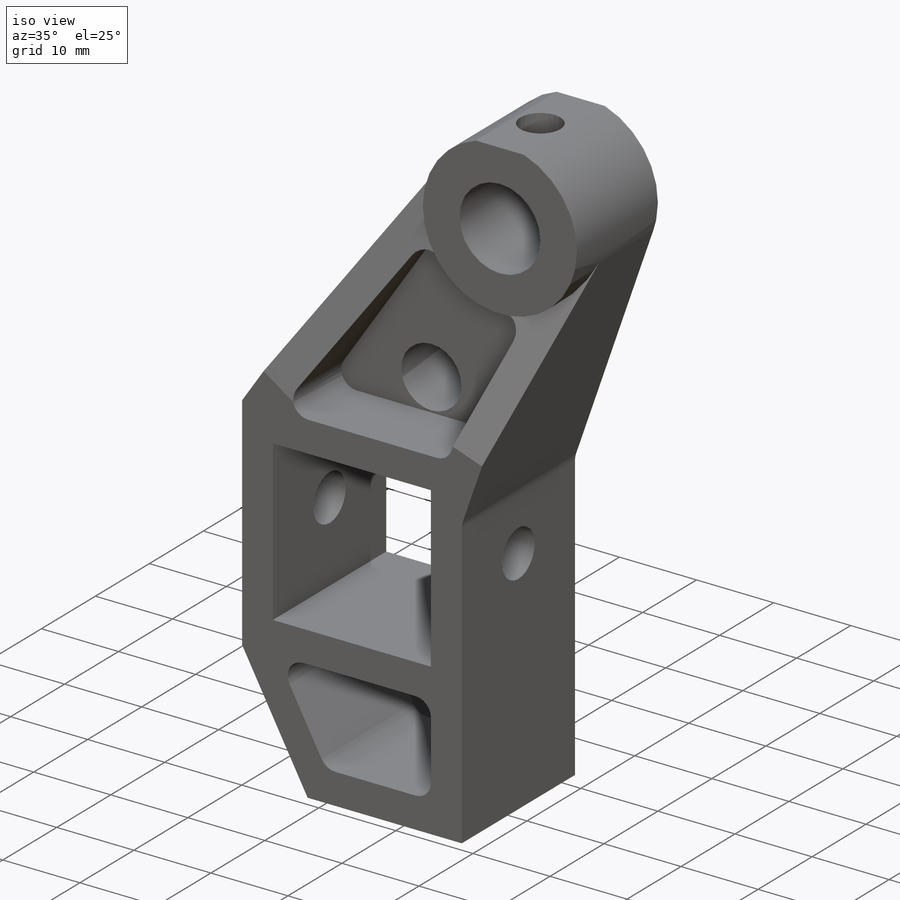
[diagram: iso view]
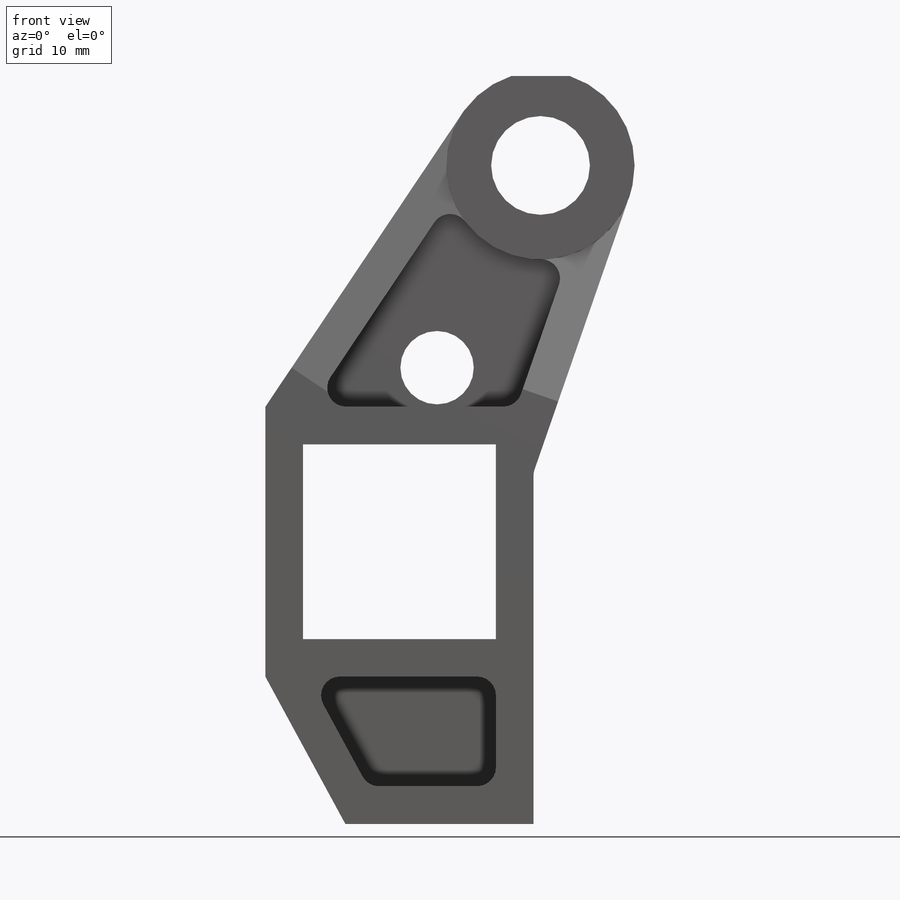
[diagram: front view]
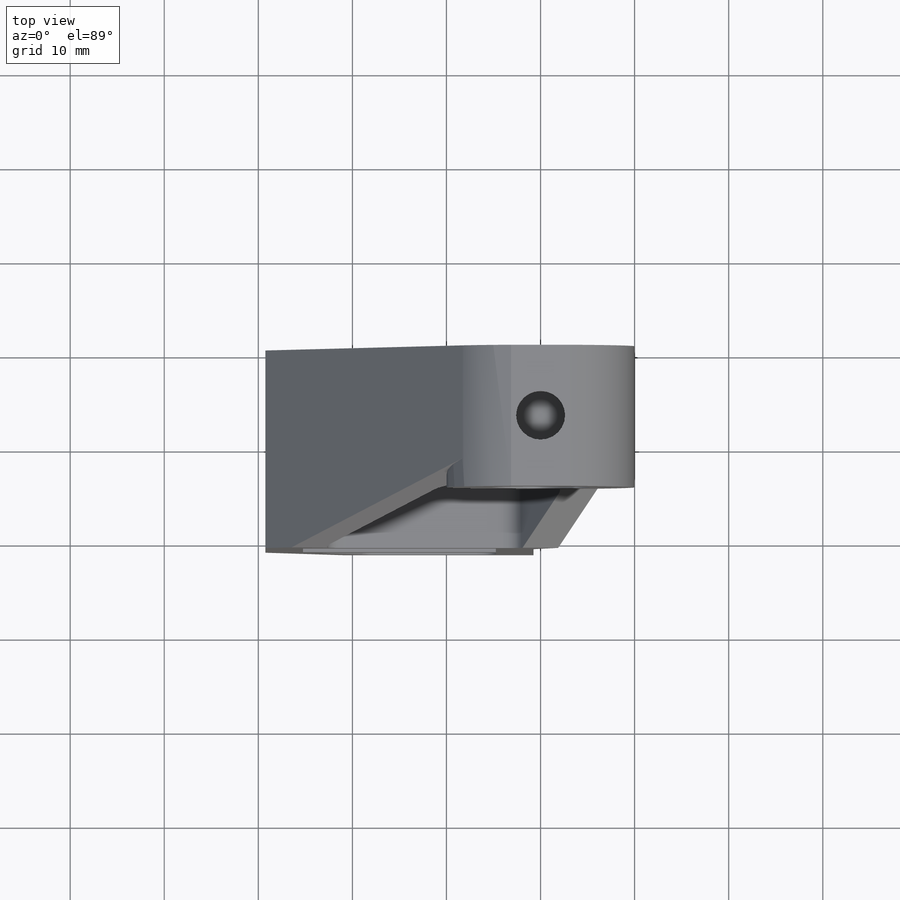
[diagram: top view]
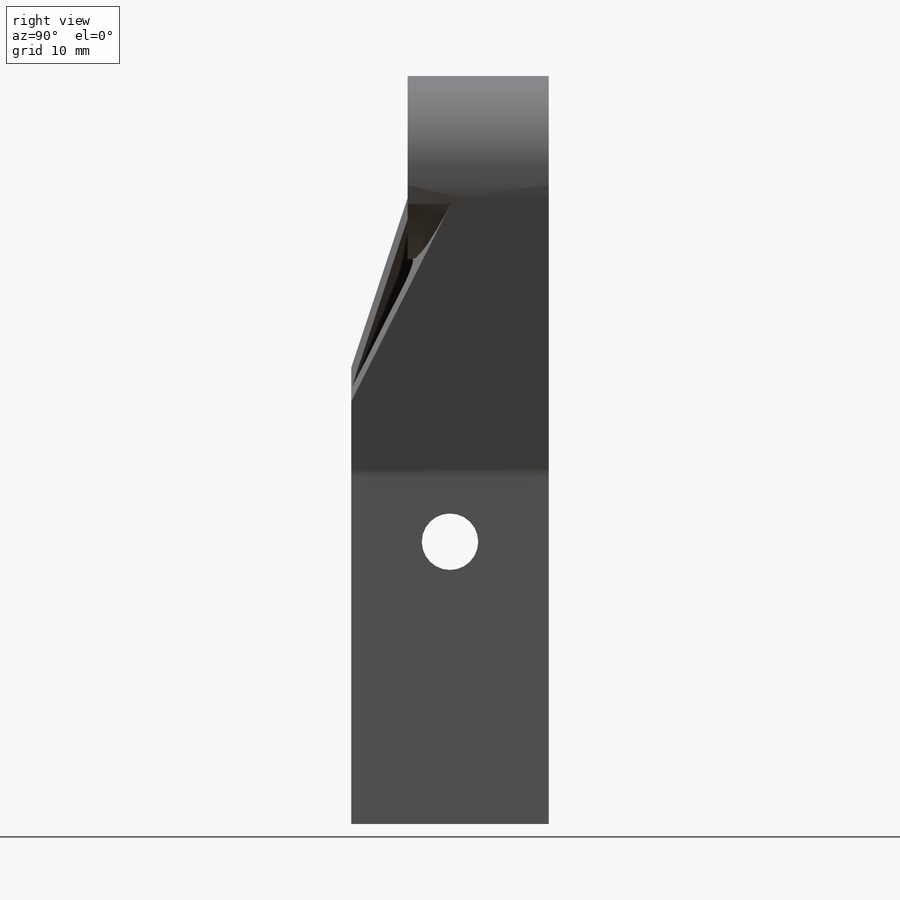
[diagram: right view]
SOLIDWORKS PART (.sldprt)
format: sldprt  version: not decoded by parser v0  size: 327,168 bytes
history: native  units: mm
features: sketch x8, extrude x6, cut_extrude x2, material x1, fillet x1 (+11 scaffold rows collapsed)
feature tree (29):
  scaffold x11  (default folders/planes/origin — collapsed)
  material  "Material <not specified>"
  sketch  "Sketch1"  dims[c1.D3=10.5mm c1.D4=10.0mm c1.D8=20.0mm c1.D18=7.8mm c1.D1=40.0mm c1.D2=15.0mm c1.D5=20.7mm c1.D6=20.5mm c1.D7=10.25mm c1.D9=4.0mm c1.D10=20.0mm c1.D11=30.0mm c1.D12=2.0mm c1.D13=9.5mm c2.D9=4.0mm c2.D14=4.0mm c2.D15=4.0mm c2.D7=4.0mm c2.D12=3.0mm c2.D16=18.5mm c2.D17=4.0mm]
  extrude  "Boss-Extrude1"  Depth=4mm
  sketch  "Sketch2"
  extrude  "Boss-Extrude2"  Depth=11mm
  sketch  "Sketch3"  dims[D4=2.0mm D5=2.0mm D1=4.0mm D2=4.0mm D3=4.0mm]
  extrude  "Boss-Extrude3"  Depth=17mm
  sketch  "Sketch4"  dims[D1=5.0mm D2=3.0mm]
  extrude  "Boss-Extrude4"  Depth=4mm
  sketch  "Sketch6"  dims[D1=8.0mm D2=5.0mm]
  extrude  "Boss-Extrude6"  Depth=4mm
  fillet  "Fillet8"  Radius=2mm
  sketch  "Sketch7"  dims[D1=5.2mm]
  cut_extrude  "Cut-Extrude1"  Depth=6mm
  sketch  "Sketch9"  dims[D1=6.0mm]
  cut_extrude  "Cut-Extrude2"  [1 undecoded]
  sketch  "Sketch10"  dims[D1=0.0mm]
  extrude  "Boss-Extrude7"  Depth=8mm
decode coverage: 15 of 17 modeling features carry decoded parameters
note: 1 parameter value undecoded
note: suppression state not decoded; provenance and decode notes live in map.json
